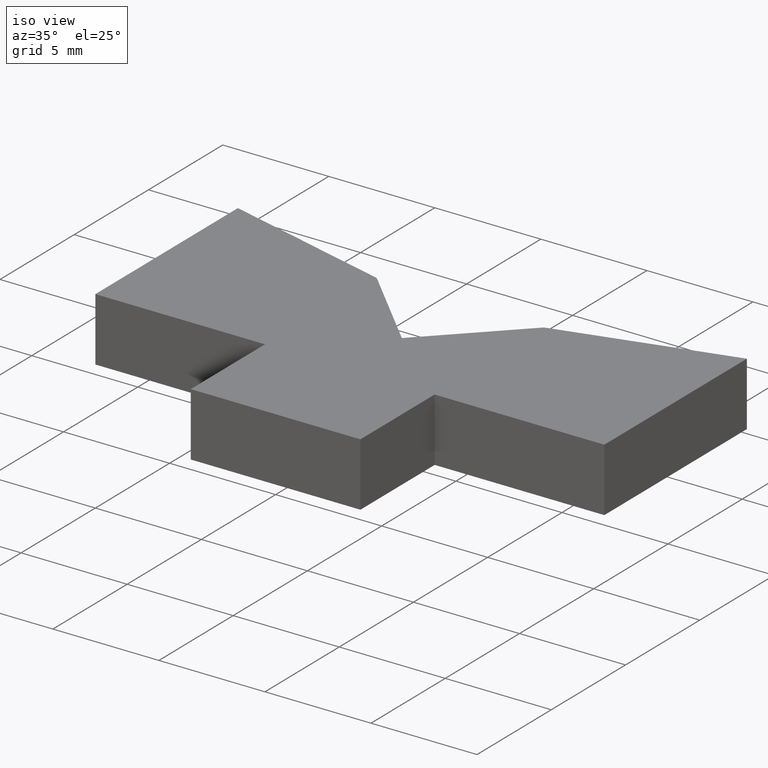
[diagram: clean part render]
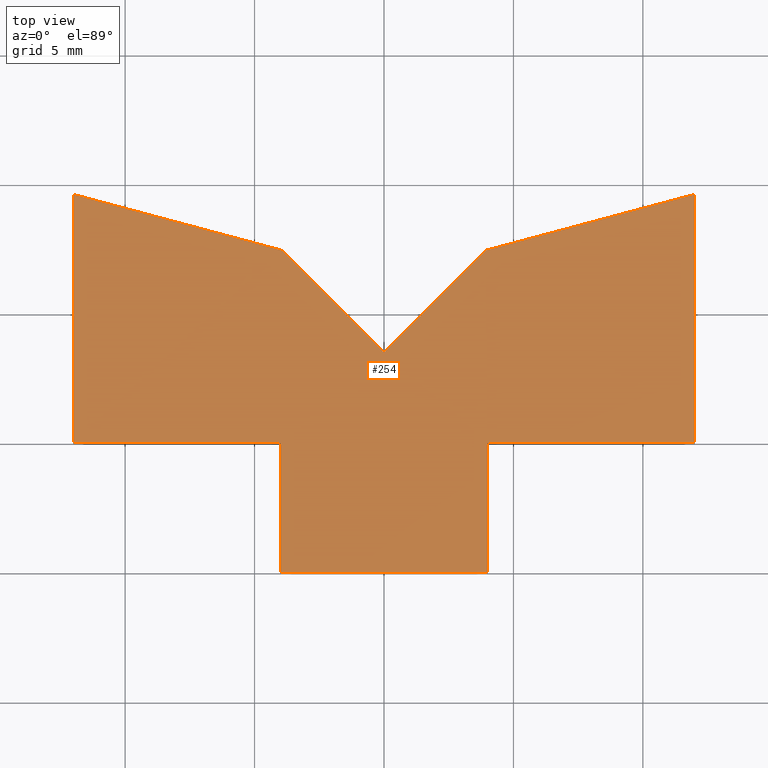
[diagram: tour spotlight — one face highlighted and labeled with its STEP entity id]
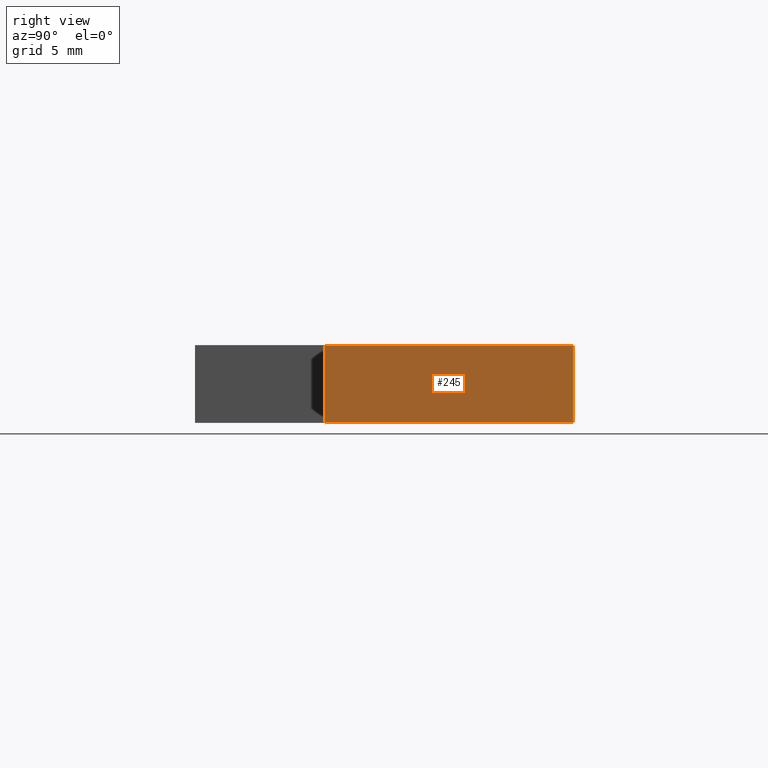
[diagram: tour spotlight — one face highlighted and labeled with its STEP entity id]
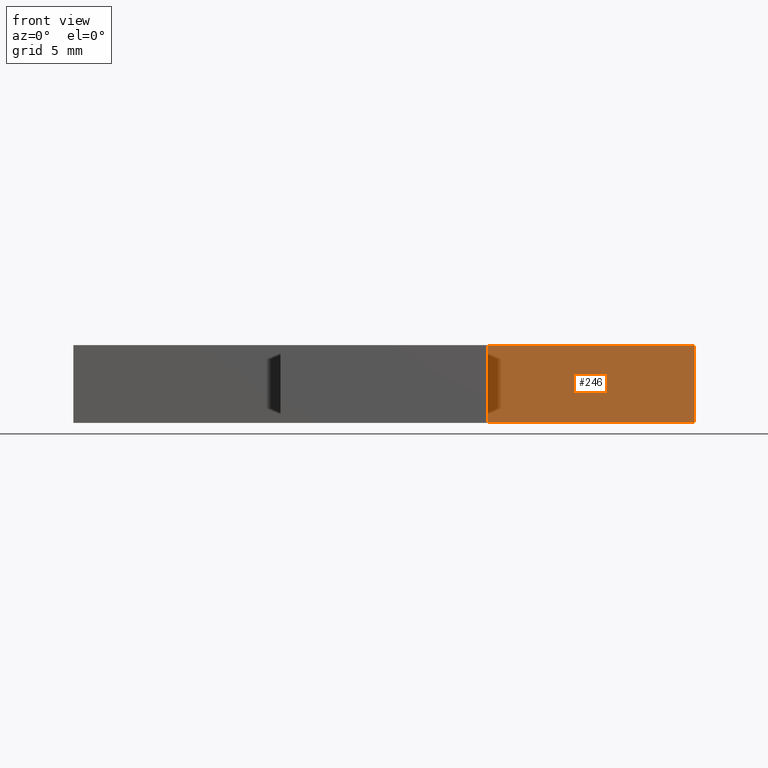
[diagram: tour spotlight — one face highlighted and labeled with its STEP entity id]
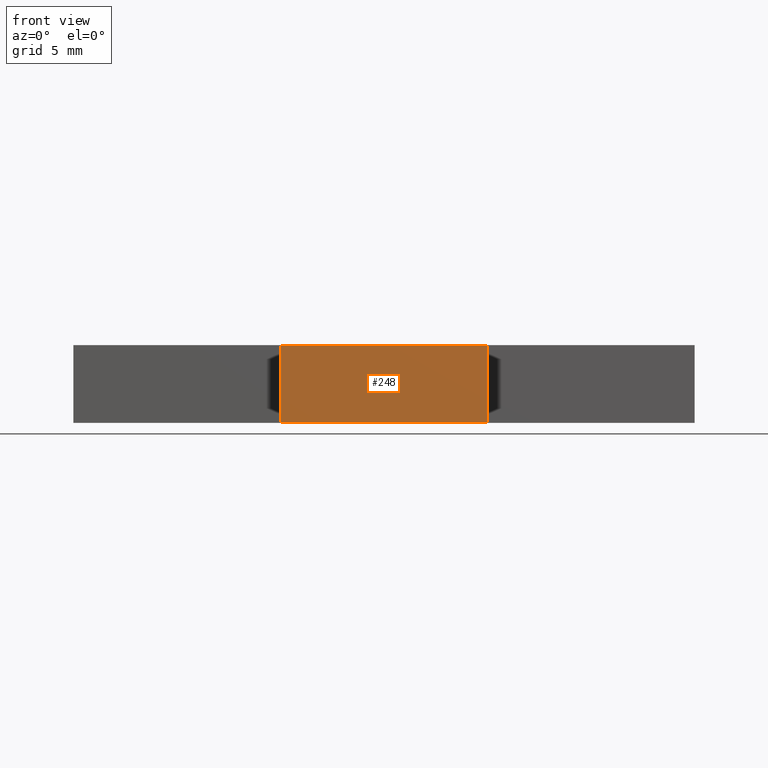
[diagram: tour spotlight — one face highlighted and labeled with its STEP entity id]
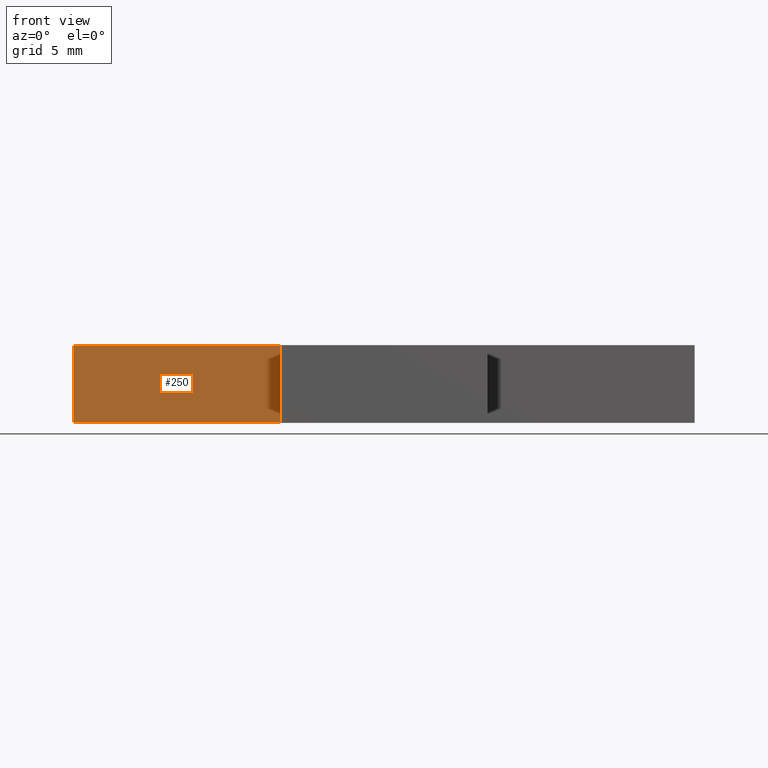
[diagram: tour spotlight — one face highlighted and labeled with its STEP entity id]
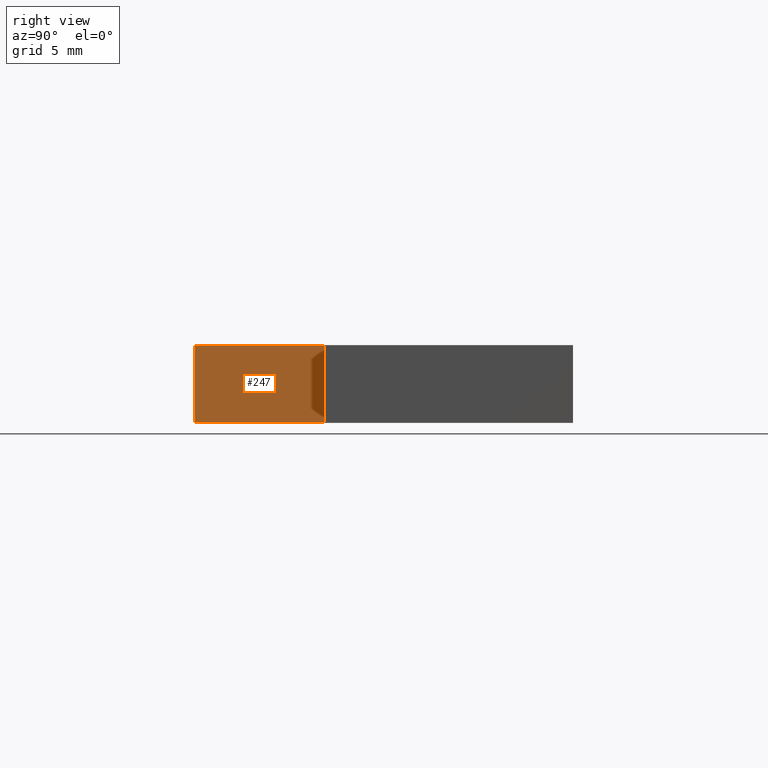
[diagram: tour spotlight — one face highlighted and labeled with its STEP entity id]
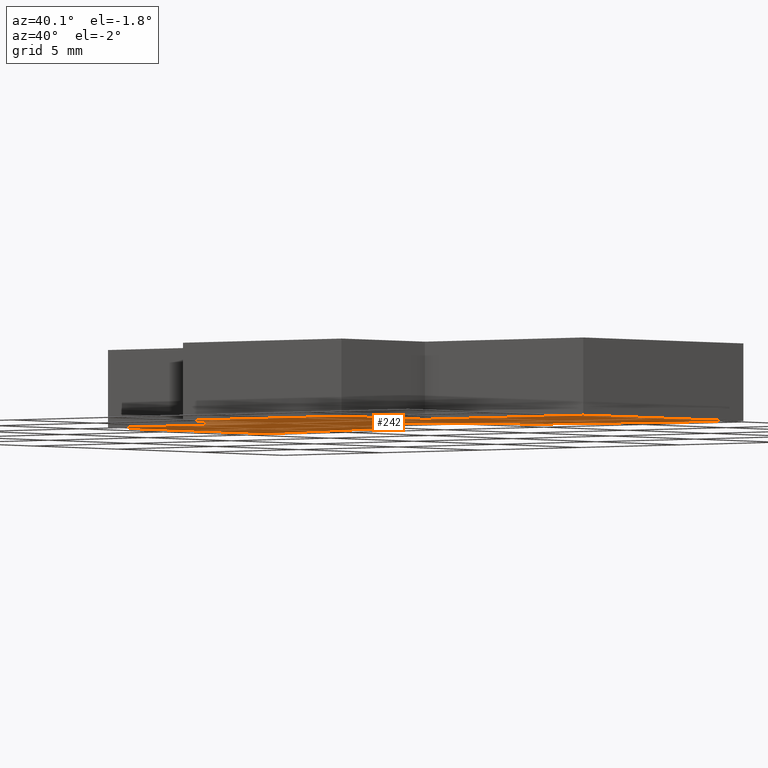
[diagram: tour spotlight — one face highlighted and labeled with its STEP entity id]
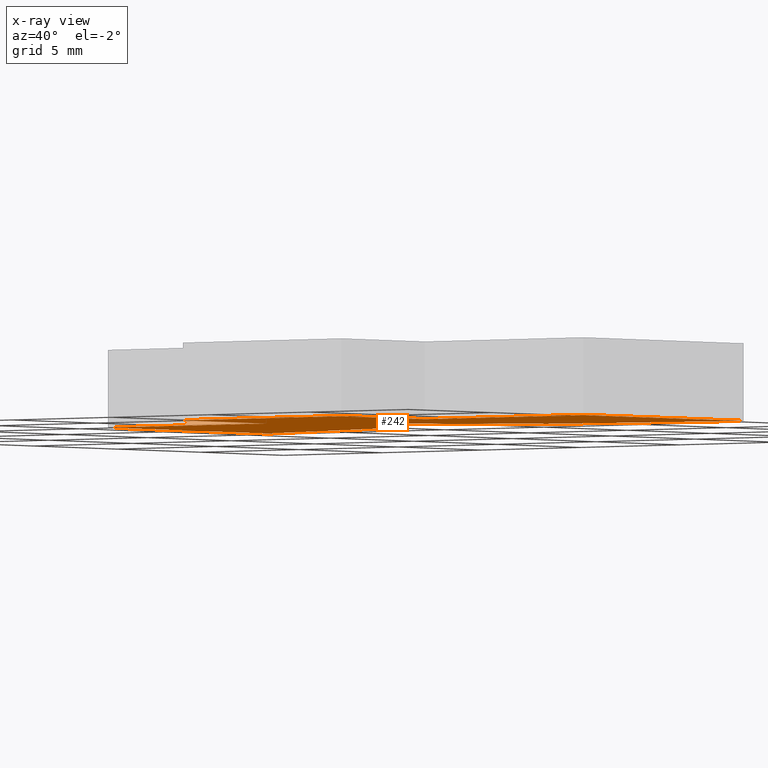
[diagram: x-ray of the same camera — body ghosted, this tour face saturated]
A machine part: a face-by-face anatomy tour. The part has 13 B-rep faces; the first image is the clean iso view, then the 7 largest visible faces are spotlighted one at a time (largest first), each with its STEP entity span.

Face 1 — top view, entity #254. In plain terms, the highlighted planar face has unit normal (0, 0, 1).
Definition (entity closure, byte-faithful):
#28=FACE_OUTER_BOUND('',#41,.T.);
#41=EDGE_LOOP('',(#218,#219,#220,#221,#222,#223,#224,#225,#226,#227,#228));
#53=LINE('',#379,#86);
#56=LINE('',#384,#89);
#58=LINE('',#388,#91);
#60=LINE('',#392,#93);
#62=LINE('',#396,#95);
#64=LINE('',#400,#97);
#66=LINE('',#404,#99);
#68=LINE('',#408,#101);
#70=LINE('',#412,#103);
#72=LINE('',#416,#105);
#74=LINE('',#419,#107);
#86=VECTOR('',#308,10.);
#89=VECTOR('',#313,10.);
#91=VECTOR('',#317,10.);
#93=VECTOR('',#321,10.);
#95=VECTOR('',#325,10.);
#97=VECTOR('',#329,10.);
#99=VECTOR('',#333,10.);
#101=VECTOR('',#337,10.);
#103=VECTOR('',#341,10.);
#105=VECTOR('',#345,10.);
#107=VECTOR('',#349,10.);
#119=VERTEX_POINT('',#377);
#120=VERTEX_POINT('',#378);
#121=VERTEX_POINT('',#383);
#122=VERTEX_POINT('',#387);
#123=VERTEX_POINT('',#391);
#124=VERTEX_POINT('',#395);
#125=VERTEX_POINT('',#399);
#126=VERTEX_POINT('',#403);
#127=VERTEX_POINT('',#407);
#128=VERTEX_POINT('',#411);
#129=VERTEX_POINT('',#415);
#141=EDGE_CURVE('',#119,#120,#53,.T.);
#144=EDGE_CURVE('',#120,#121,#56,.T.);
#146=EDGE_CURVE('',#121,#122,#58,.T.);
#148=EDGE_CURVE('',#122,#123,#60,.T.);
#150=EDGE_CURVE('',#123,#124,#62,.T.);
#152=EDGE_CURVE('',#124,#125,#64,.T.);
#154=EDGE_CURVE('',#125,#126,#66,.T.);
#156=EDGE_CURVE('',#126,#127,#68,.T.);
#158=EDGE_CURVE('',#127,#128,#70,.T.);
#160=EDGE_CURVE('',#128,#129,#72,.T.);
#162=EDGE_CURVE('',#129,#119,#74,.T.);
#218=ORIENTED_EDGE('',*,*,#141,.F.);
#219=ORIENTED_EDGE('',*,*,#162,.F.);
#220=ORIENTED_EDGE('',*,*,#160,.F.);
#221=ORIENTED_EDGE('',*,*,#158,.F.);
#222=ORIENTED_EDGE('',*,*,#156,.F.);
#223=ORIENTED_EDGE('',*,*,#154,.F.);
#224=ORIENTED_EDGE('',*,*,#152,.F.);
#225=ORIENTED_EDGE('',*,*,#150,.F.);
#226=ORIENTED_EDGE('',*,*,#148,.F.);
#227=ORIENTED_EDGE('',*,*,#146,.F.);
#228=ORIENTED_EDGE('',*,*,#144,.F.);
#241=PLANE('',#290);
#254=ADVANCED_FACE('',(#28),#241,.T.);
#290=AXIS2_PLACEMENT_3D('',#420,#350,#351);
#308=DIRECTION('',(0.707106781186548,0.707106781186547,0.));
#313=DIRECTION('',(0.965925826289068,0.25881904510252,0.));
#317=DIRECTION('',(0.,-1.,0.));
#321=DIRECTION('',(-1.,0.,0.));
#325=DIRECTION('',(0.,-1.,0.));
#329=DIRECTION('',(-1.,0.,0.));
#333=DIRECTION('',(0.,1.,0.));
#337=DIRECTION('',(-1.,0.,0.));
#341=DIRECTION('',(0.,1.,0.));
#345=DIRECTION('',(0.965925826289068,-0.25881904510252,0.));
#349=DIRECTION('',(0.707106781186548,-0.707106781186547,0.));
#350=DIRECTION('center_axis',(0.,0.,1.));
#351=DIRECTION('ref_axis',(1.,0.,0.));
#377=CARTESIAN_POINT('',(0.,3.5,1.5));
#378=CARTESIAN_POINT('',(3.94045011767182,7.44045011767182,1.5));
#379=CARTESIAN_POINT('',(3.94045011767182,7.44045011767182,1.5));
#383=CARTESIAN_POINT('',(12.,9.6,1.5));
#384=CARTESIAN_POINT('',(12.,9.6,1.5));
#387=CARTESIAN_POINT('',(12.,0.,1.5));
#388=CARTESIAN_POINT('',(12.,0.,1.5));
#391=CARTESIAN_POINT('',(4.,0.,1.5));
#392=CARTESIAN_POINT('',(4.,0.,1.5));
#395=CARTESIAN_POINT('',(4.,-5.,1.5));
#396=CARTESIAN_POINT('',(4.,-5.,1.5));
#399=CARTESIAN_POINT('',(-4.,-5.,1.5));
#400=CARTESIAN_POINT('',(-4.,-5.,1.5));
#403=CARTESIAN_POINT('',(-4.,0.,1.5));
#404=CARTESIAN_POINT('',(-4.,0.,1.5));
#407=CARTESIAN_POINT('',(-12.,0.,1.5));
#408=CARTESIAN_POINT('',(-12.,0.,1.5));
#411=CARTESIAN_POINT('',(-12.,9.6,1.5));
#412=CARTESIAN_POINT('',(-12.,9.6,1.5));
#415=CARTESIAN_POINT('',(-3.94045011767182,7.44045011767182,1.5));
#416=CARTESIAN_POINT('',(-3.94045011767182,7.44045011767182,1.5));
#419=CARTESIAN_POINT('',(0.,3.5,1.5));
#420=CARTESIAN_POINT('Origin',(-1.73472347597681E-16,2.84217923248192,1.5));

Face 2 — right view, entity #245. In plain terms, the highlighted planar face has unit normal (1, 0, 0).
Definition (entity closure, byte-faithful):
#19=FACE_OUTER_BOUND('',#32,.T.);
#32=EDGE_LOOP('',(#182,#183,#184,#185));
#46=LINE('',#364,#79);
#57=LINE('',#385,#90);
#58=LINE('',#388,#91);
#59=LINE('',#389,#92);
#79=VECTOR('',#299,10.);
#90=VECTOR('',#314,10.);
#91=VECTOR('',#317,10.);
#92=VECTOR('',#318,10.);
#112=VERTEX_POINT('',#361);
#113=VERTEX_POINT('',#363);
#121=VERTEX_POINT('',#383);
#122=VERTEX_POINT('',#387);
#134=EDGE_CURVE('',#113,#112,#46,.T.);
#145=EDGE_CURVE('',#112,#121,#57,.T.);
#146=EDGE_CURVE('',#121,#122,#58,.T.);
#147=EDGE_CURVE('',#113,#122,#59,.T.);
#182=ORIENTED_EDGE('',*,*,#146,.T.);
#183=ORIENTED_EDGE('',*,*,#147,.F.);
#184=ORIENTED_EDGE('',*,*,#134,.T.);
#185=ORIENTED_EDGE('',*,*,#145,.T.);
#232=PLANE('',#281);
#245=ADVANCED_FACE('',(#19),#232,.T.);
#281=AXIS2_PLACEMENT_3D('',#386,#315,#316);
#299=DIRECTION('',(0.,1.,0.));
#314=DIRECTION('',(0.,0.,1.));
#315=DIRECTION('center_axis',(1.,0.,0.));
#316=DIRECTION('ref_axis',(0.,0.,-1.));
#317=DIRECTION('',(0.,-1.,0.));
#318=DIRECTION('',(0.,0.,1.));
#361=CARTESIAN_POINT('',(12.,9.6,-1.5));
#363=CARTESIAN_POINT('',(12.,0.,-1.5));
#364=CARTESIAN_POINT('',(12.,0.,-1.5));
#383=CARTESIAN_POINT('',(12.,9.6,1.5));
#385=CARTESIAN_POINT('',(12.,9.6,0.));
#386=CARTESIAN_POINT('Origin',(12.,9.6,0.));
#387=CARTESIAN_POINT('',(12.,0.,1.5));
#388=CARTESIAN_POINT('',(12.,0.,1.5));
#389=CARTESIAN_POINT('',(12.,0.,0.));

Face 3 — front view, entity #246. In plain terms, the highlighted planar face has unit normal (0, -1, 0).
Definition (entity closure, byte-faithful):
#20=FACE_OUTER_BOUND('',#33,.T.);
#33=EDGE_LOOP('',(#186,#187,#188,#189));
#47=LINE('',#366,#80);
#59=LINE('',#389,#92);
#60=LINE('',#392,#93);
#61=LINE('',#393,#94);
#80=VECTOR('',#300,10.);
#92=VECTOR('',#318,10.);
#93=VECTOR('',#321,10.);
#94=VECTOR('',#322,10.);
#113=VERTEX_POINT('',#363);
#114=VERTEX_POINT('',#365);
#122=VERTEX_POINT('',#387);
#123=VERTEX_POINT('',#391);
#135=EDGE_CURVE('',#114,#113,#47,.T.);
#147=EDGE_CURVE('',#113,#122,#59,.T.);
#148=EDGE_CURVE('',#122,#123,#60,.T.);
#149=EDGE_CURVE('',#114,#123,#61,.T.);
#186=ORIENTED_EDGE('',*,*,#148,.T.);
#187=ORIENTED_EDGE('',*,*,#149,.F.);
#188=ORIENTED_EDGE('',*,*,#135,.T.);
#189=ORIENTED_EDGE('',*,*,#147,.T.);
#233=PLANE('',#282);
#246=ADVANCED_FACE('',(#20),#233,.T.);
#282=AXIS2_PLACEMENT_3D('',#390,#319,#320);
#300=DIRECTION('',(1.,0.,0.));
#318=DIRECTION('',(0.,0.,1.));
#319=DIRECTION('center_axis',(0.,-1.,0.));
#320=DIRECTION('ref_axis',(0.,0.,-1.));
#321=DIRECTION('',(-1.,0.,0.));
#322=DIRECTION('',(0.,0.,1.));
#363=CARTESIAN_POINT('',(12.,0.,-1.5));
#365=CARTESIAN_POINT('',(4.,0.,-1.5));
#366=CARTESIAN_POINT('',(4.,0.,-1.5));
#387=CARTESIAN_POINT('',(12.,0.,1.5));
#389=CARTESIAN_POINT('',(12.,0.,0.));
#390=CARTESIAN_POINT('Origin',(12.,0.,0.));
#391=CARTESIAN_POINT('',(4.,0.,1.5));
#392=CARTESIAN_POINT('',(4.,0.,1.5));
#393=CARTESIAN_POINT('',(4.,0.,0.));

Face 4 — front view, entity #248. In plain terms, the highlighted planar face has unit normal (0, -1, 0).
Definition (entity closure, byte-faithful):
#22=FACE_OUTER_BOUND('',#35,.T.);
#35=EDGE_LOOP('',(#194,#195,#196,#197));
#49=LINE('',#370,#82);
#63=LINE('',#397,#96);
#64=LINE('',#400,#97);
#65=LINE('',#401,#98);
#82=VECTOR('',#302,10.);
#96=VECTOR('',#326,10.);
#97=VECTOR('',#329,10.);
#98=VECTOR('',#330,10.);
#115=VERTEX_POINT('',#367);
#116=VERTEX_POINT('',#369);
#124=VERTEX_POINT('',#395);
#125=VERTEX_POINT('',#399);
#137=EDGE_CURVE('',#116,#115,#49,.T.);
#151=EDGE_CURVE('',#115,#124,#63,.T.);
#152=EDGE_CURVE('',#124,#125,#64,.T.);
#153=EDGE_CURVE('',#116,#125,#65,.T.);
#194=ORIENTED_EDGE('',*,*,#152,.T.);
#195=ORIENTED_EDGE('',*,*,#153,.F.);
#196=ORIENTED_EDGE('',*,*,#137,.T.);
#197=ORIENTED_EDGE('',*,*,#151,.T.);
#235=PLANE('',#284);
#248=ADVANCED_FACE('',(#22),#235,.T.);
#284=AXIS2_PLACEMENT_3D('',#398,#327,#328);
#302=DIRECTION('',(1.,0.,0.));
#326=DIRECTION('',(0.,0.,1.));
#327=DIRECTION('center_axis',(0.,-1.,0.));
#328=DIRECTION('ref_axis',(0.,0.,-1.));
#329=DIRECTION('',(-1.,0.,0.));
#330=DIRECTION('',(0.,0.,1.));
#367=CARTESIAN_POINT('',(4.,-5.,-1.5));
#369=CARTESIAN_POINT('',(-4.,-5.,-1.5));
#370=CARTESIAN_POINT('',(-4.,-5.,-1.5));
#395=CARTESIAN_POINT('',(4.,-5.,1.5));
#397=CARTESIAN_POINT('',(4.,-5.,0.));
#398=CARTESIAN_POINT('Origin',(4.,-5.,0.));
#399=CARTESIAN_POINT('',(-4.,-5.,1.5));
#400=CARTESIAN_POINT('',(-4.,-5.,1.5));
#401=CARTESIAN_POINT('',(-4.,-5.,0.));

Face 5 — front view, entity #250. In plain terms, the highlighted planar face has unit normal (0, -1, 0).
Definition (entity closure, byte-faithful):
#24=FACE_OUTER_BOUND('',#37,.T.);
#37=EDGE_LOOP('',(#202,#203,#204,#205));
#51=LINE('',#374,#84);
#67=LINE('',#405,#100);
#68=LINE('',#408,#101);
#69=LINE('',#409,#102);
#84=VECTOR('',#304,10.);
#100=VECTOR('',#334,10.);
#101=VECTOR('',#337,10.);
#102=VECTOR('',#338,10.);
#117=VERTEX_POINT('',#371);
#118=VERTEX_POINT('',#373);
#126=VERTEX_POINT('',#403);
#127=VERTEX_POINT('',#407);
#139=EDGE_CURVE('',#118,#117,#51,.T.);
#155=EDGE_CURVE('',#117,#126,#67,.T.);
#156=EDGE_CURVE('',#126,#127,#68,.T.);
#157=EDGE_CURVE('',#118,#127,#69,.T.);
#202=ORIENTED_EDGE('',*,*,#156,.T.);
#203=ORIENTED_EDGE('',*,*,#157,.F.);
#204=ORIENTED_EDGE('',*,*,#139,.T.);
#205=ORIENTED_EDGE('',*,*,#155,.T.);
#237=PLANE('',#286);
#250=ADVANCED_FACE('',(#24),#237,.T.);
#286=AXIS2_PLACEMENT_3D('',#406,#335,#336);
#304=DIRECTION('',(1.,0.,0.));
#334=DIRECTION('',(0.,0.,1.));
#335=DIRECTION('center_axis',(0.,-1.,0.));
#336=DIRECTION('ref_axis',(0.,0.,-1.));
#337=DIRECTION('',(-1.,0.,0.));
#338=DIRECTION('',(0.,0.,1.));
#371=CARTESIAN_POINT('',(-4.,0.,-1.5));
#373=CARTESIAN_POINT('',(-12.,0.,-1.5));
#374=CARTESIAN_POINT('',(-12.,0.,-1.5));
#403=CARTESIAN_POINT('',(-4.,0.,1.5));
#405=CARTESIAN_POINT('',(-4.,0.,0.));
#406=CARTESIAN_POINT('Origin',(-4.,0.,0.));
#407=CARTESIAN_POINT('',(-12.,0.,1.5));
#408=CARTESIAN_POINT('',(-12.,0.,1.5));
#409=CARTESIAN_POINT('',(-12.,0.,0.));

Face 6 — right view, entity #247. In plain terms, the highlighted planar face has unit normal (1, 0, 0).
Definition (entity closure, byte-faithful):
#21=FACE_OUTER_BOUND('',#34,.T.);
#34=EDGE_LOOP('',(#190,#191,#192,#193));
#48=LINE('',#368,#81);
#61=LINE('',#393,#94);
#62=LINE('',#396,#95);
#63=LINE('',#397,#96);
#81=VECTOR('',#301,10.);
#94=VECTOR('',#322,10.);
#95=VECTOR('',#325,10.);
#96=VECTOR('',#326,10.);
#114=VERTEX_POINT('',#365);
#115=VERTEX_POINT('',#367);
#123=VERTEX_POINT('',#391);
#124=VERTEX_POINT('',#395);
#136=EDGE_CURVE('',#115,#114,#48,.T.);
#149=EDGE_CURVE('',#114,#123,#61,.T.);
#150=EDGE_CURVE('',#123,#124,#62,.T.);
#151=EDGE_CURVE('',#115,#124,#63,.T.);
#190=ORIENTED_EDGE('',*,*,#150,.T.);
#191=ORIENTED_EDGE('',*,*,#151,.F.);
#192=ORIENTED_EDGE('',*,*,#136,.T.);
#193=ORIENTED_EDGE('',*,*,#149,.T.);
#234=PLANE('',#283);
#247=ADVANCED_FACE('',(#21),#234,.T.);
#283=AXIS2_PLACEMENT_3D('',#394,#323,#324);
#301=DIRECTION('',(0.,1.,0.));
#322=DIRECTION('',(0.,0.,1.));
#323=DIRECTION('center_axis',(1.,0.,0.));
#324=DIRECTION('ref_axis',(0.,0.,-1.));
#325=DIRECTION('',(0.,-1.,0.));
#326=DIRECTION('',(0.,0.,1.));
#365=CARTESIAN_POINT('',(4.,0.,-1.5));
#367=CARTESIAN_POINT('',(4.,-5.,-1.5));
#368=CARTESIAN_POINT('',(4.,-5.,-1.5));
#391=CARTESIAN_POINT('',(4.,0.,1.5));
#393=CARTESIAN_POINT('',(4.,0.,0.));
#394=CARTESIAN_POINT('Origin',(4.,0.,0.));
#395=CARTESIAN_POINT('',(4.,-5.,1.5));
#396=CARTESIAN_POINT('',(4.,-5.,1.5));
#397=CARTESIAN_POINT('',(4.,-5.,0.));

Face 7 — auxiliary view, entity #242. An x-ray twin of the same camera follows (body ghosted, this face saturated) — the face is partly hidden behind the body. In plain terms, the highlighted planar face has unit normal (0, 0, 1).
Definition (entity closure, byte-faithful):
#16=FACE_OUTER_BOUND('',#29,.T.);
#29=EDGE_LOOP('',(#163,#164,#165,#166,#167,#168,#169,#170,#171,#172,#173));
#42=LINE('',#356,#75);
#43=LINE('',#358,#76);
#44=LINE('',#360,#77);
#45=LINE('',#362,#78);
#46=LINE('',#364,#79);
#47=LINE('',#366,#80);
#48=LINE('',#368,#81);
#49=LINE('',#370,#82);
#50=LINE('',#372,#83);
#51=LINE('',#374,#84);
#52=LINE('',#375,#85);
#75=VECTOR('',#295,10.);
#76=VECTOR('',#296,10.);
#77=VECTOR('',#297,10.);
#78=VECTOR('',#298,10.);
#79=VECTOR('',#299,10.);
#80=VECTOR('',#300,10.);
#81=VECTOR('',#301,10.);
#82=VECTOR('',#302,10.);
#83=VECTOR('',#303,10.);
#84=VECTOR('',#304,10.);
#85=VECTOR('',#305,10.);
#108=VERTEX_POINT('',#354);
#109=VERTEX_POINT('',#355);
#110=VERTEX_POINT('',#357);
#111=VERTEX_POINT('',#359);
#112=VERTEX_POINT('',#361);
#113=VERTEX_POINT('',#363);
#114=VERTEX_POINT('',#365);
#115=VERTEX_POINT('',#367);
#116=VERTEX_POINT('',#369);
#117=VERTEX_POINT('',#371);
#118=VERTEX_POINT('',#373);
#130=EDGE_CURVE('',#108,#109,#42,.T.);
#131=EDGE_CURVE('',#110,#108,#43,.T.);
#132=EDGE_CURVE('',#111,#110,#44,.T.);
#133=EDGE_CURVE('',#112,#111,#45,.T.);
#134=EDGE_CURVE('',#113,#112,#46,.T.);
#135=EDGE_CURVE('',#114,#113,#47,.T.);
#136=EDGE_CURVE('',#115,#114,#48,.T.);
#137=EDGE_CURVE('',#116,#115,#49,.T.);
#138=EDGE_CURVE('',#117,#116,#50,.T.);
#139=EDGE_CURVE('',#118,#117,#51,.T.);
#140=EDGE_CURVE('',#109,#118,#52,.T.);
#163=ORIENTED_EDGE('',*,*,#130,.F.);
#164=ORIENTED_EDGE('',*,*,#131,.F.);
#165=ORIENTED_EDGE('',*,*,#132,.F.);
#166=ORIENTED_EDGE('',*,*,#133,.F.);
#167=ORIENTED_EDGE('',*,*,#134,.F.);
#168=ORIENTED_EDGE('',*,*,#135,.F.);
#169=ORIENTED_EDGE('',*,*,#136,.F.);
#170=ORIENTED_EDGE('',*,*,#137,.F.);
#171=ORIENTED_EDGE('',*,*,#138,.F.);
#172=ORIENTED_EDGE('',*,*,#139,.F.);
#173=ORIENTED_EDGE('',*,*,#140,.F.);
#229=PLANE('',#278);
#242=ADVANCED_FACE('',(#16),#229,.F.);
#278=AXIS2_PLACEMENT_3D('',#353,#293,#294);
#293=DIRECTION('center_axis',(0.,0.,1.));
#294=DIRECTION('ref_axis',(1.,0.,0.));
#295=DIRECTION('',(-0.965925826289068,0.25881904510252,0.));
#296=DIRECTION('',(-0.707106781186548,0.707106781186547,0.));
#297=DIRECTION('',(-0.707106781186548,-0.707106781186547,0.));
#298=DIRECTION('',(-0.965925826289068,-0.25881904510252,0.));
#299=DIRECTION('',(0.,1.,0.));
#300=DIRECTION('',(1.,0.,0.));
#301=DIRECTION('',(0.,1.,0.));
#302=DIRECTION('',(1.,0.,0.));
#303=DIRECTION('',(0.,-1.,0.));
#304=DIRECTION('',(1.,0.,0.));
#305=DIRECTION('',(0.,-1.,0.));
#353=CARTESIAN_POINT('Origin',(-1.38777878078145E-16,2.84217923248192,-1.5));
#354=CARTESIAN_POINT('',(-3.94045011767182,7.44045011767182,-1.5));
#355=CARTESIAN_POINT('',(-12.,9.6,-1.5));
#356=CARTESIAN_POINT('',(-3.94045011767182,7.44045011767182,-1.5));
#357=CARTESIAN_POINT('',(0.,3.5,-1.5));
#358=CARTESIAN_POINT('',(0.,3.5,-1.5));
#359=CARTESIAN_POINT('',(3.94045011767182,7.44045011767182,-1.5));
#360=CARTESIAN_POINT('',(3.94045011767182,7.44045011767182,-1.5));
#361=CARTESIAN_POINT('',(12.,9.6,-1.5));
#362=CARTESIAN_POINT('',(12.,9.6,-1.5));
#363=CARTESIAN_POINT('',(12.,0.,-1.5));
#364=CARTESIAN_POINT('',(12.,0.,-1.5));
#365=CARTESIAN_POINT('',(4.,0.,-1.5));
#366=CARTESIAN_POINT('',(4.,0.,-1.5));
#367=CARTESIAN_POINT('',(4.,-5.,-1.5));
#368=CARTESIAN_POINT('',(4.,-5.,-1.5));
#369=CARTESIAN_POINT('',(-4.,-5.,-1.5));
#370=CARTESIAN_POINT('',(-4.,-5.,-1.5));
#371=CARTESIAN_POINT('',(-4.,0.,-1.5));
#372=CARTESIAN_POINT('',(-4.,0.,-1.5));
#373=CARTESIAN_POINT('',(-12.,0.,-1.5));
#374=CARTESIAN_POINT('',(-12.,0.,-1.5));
#375=CARTESIAN_POINT('',(-12.,9.6,-1.5));